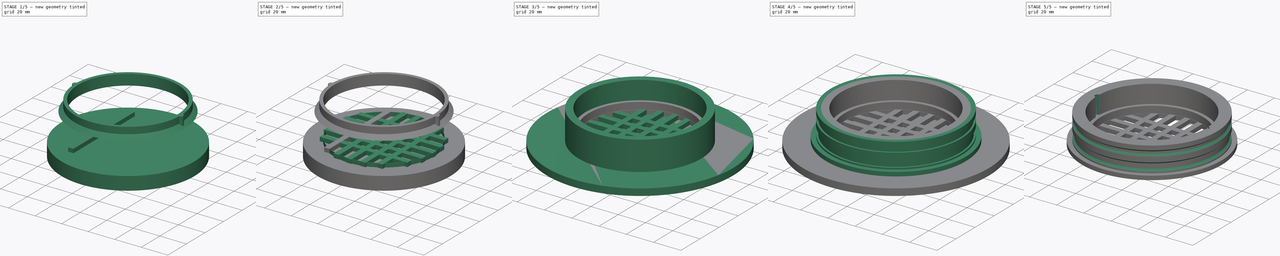
[diagram: build sequence overview — one tinted view per stage of 5, left to right]
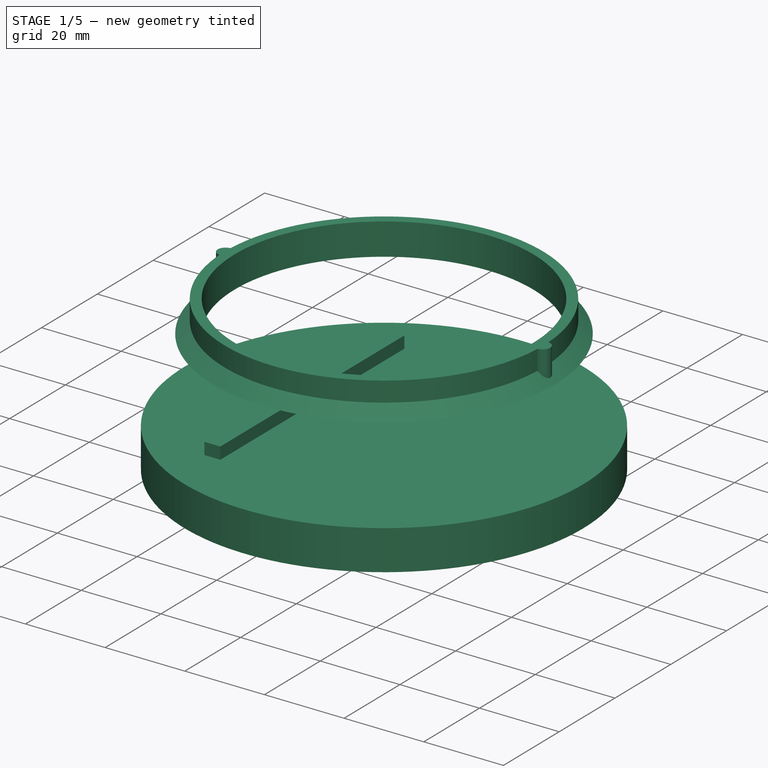
[diagram: stage 1 of 5 — iso view after this stage's code; geometry added in this stage tinted green]
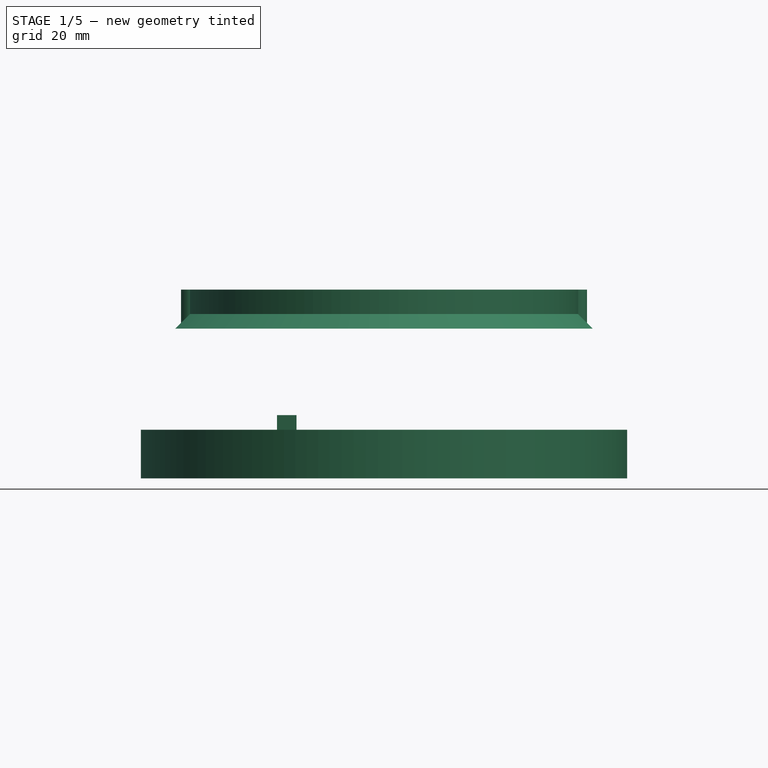
[diagram: stage 1 of 5 — front view after this stage's code; geometry added in this stage tinted green]
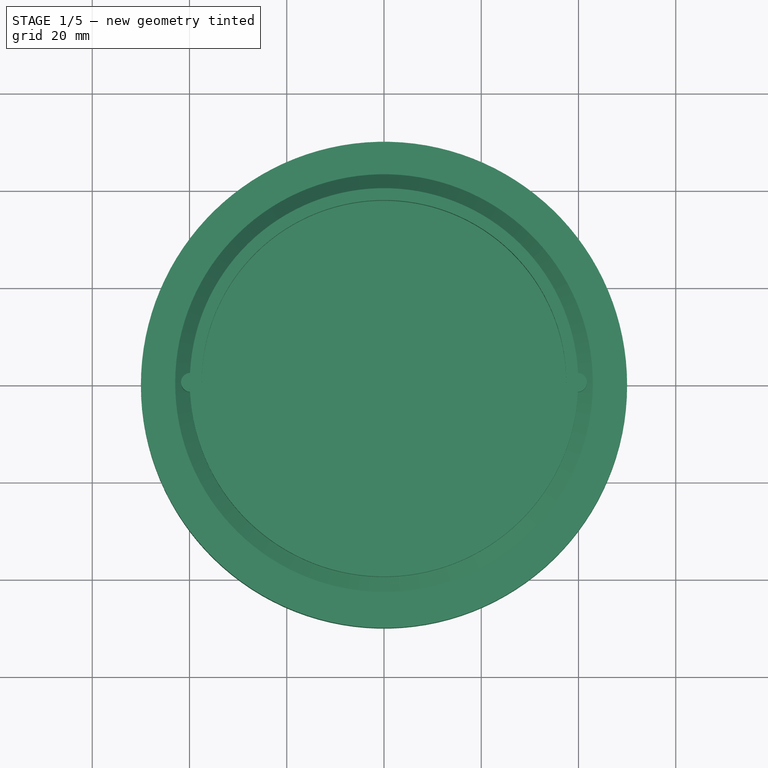
[diagram: stage 1 of 5 — top view after this stage's code; geometry added in this stage tinted green]
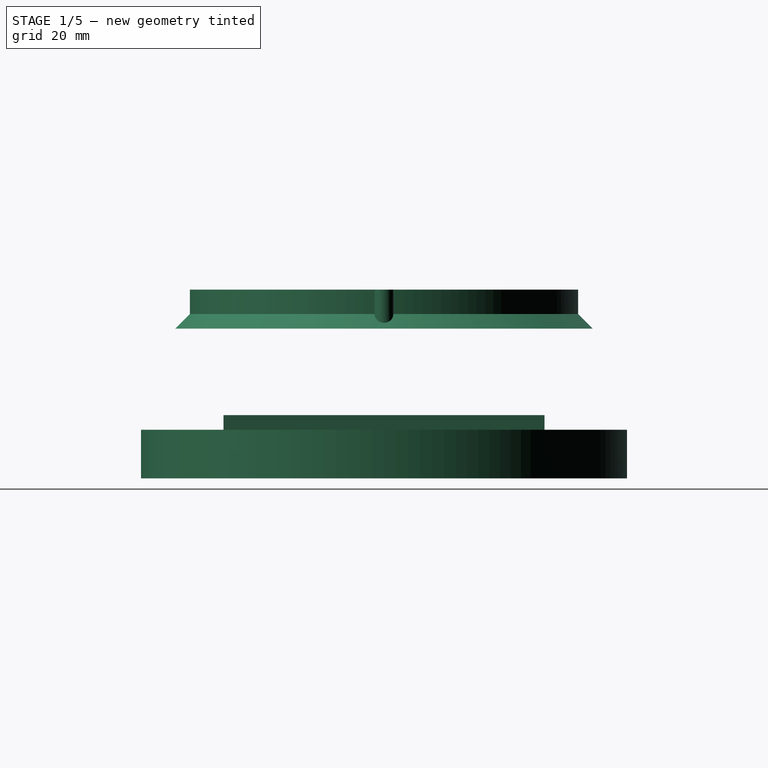
[diagram: stage 1 of 5 — right view after this stage's code; geometry added in this stage tinted green]
FCSTD DOCUMENT  (FreeCAD 0.18R4 (GitTag))
Label: rejilla_banio
License: CreativeCommons Attribution-ShareAlike
LicenseURL: http://creativecommons.org/licenses/by-sa/4.0/
objects: Part::Cylinder×24, Part::Cut×13, Part::Box×10, Part::MultiFuse×8, Part::FeaturePython×6, Part::Cone×2, Part::Chamfer×2, Part::Extrusion×2, App::DocumentObjectGroup×2, Sketcher::SketchObject×1
note: 68 computed .brp shape members not serialized (recipe doc carries the construction recipe); baked Part::Feature solids carry a one-line shape summary decoded from their .brp

FEATURE [Part::Cone] Cone001
  Angle = 360
  AttacherType = Attacher::AttachEngine3D
  Height = 5
  Placement = pos=(0,0,-15.2) rot=(0,1,0;3.14159rad)
  Radius1 = 39.95
  Radius2 = 44.95
FEATURE [Part::Cylinder] Cylinder010
  Angle = 360
  AttacherType = Attacher::AttachEngine3D
  Height = 5
  Radius = 39.95
FEATURE [Part::Cylinder] Cylinder011
  Angle = 360
  AttacherType = Attacher::AttachEngine3D
  Height = 5
  Radius = 37.5
FEATURE [Part::Cut] Cut003
  Base = -> Cylinder010
  Placement = pos=(0,0,-15.2) rot=(0,0,1;0rad)
  Tool = -> Cylinder011
FEATURE [Part::Cylinder] Cylinder012
  Angle = 360
  AttacherType = Attacher::AttachEngine3D
  Height = 32
  Placement = pos=(0,0,-39) rot=(0,0,1;0rad)
  Radius = 37.5
FEATURE [Part::Cut] Cut004
  Base = -> Cone001
  Tool = -> Cylinder012
FEATURE [Part::MultiFuse] Fusion004  label="rejilla_interior_sin_cortar_oblicuo_sin_tapa_5"
  Shapes = -> [Cut003,Cut004]
FEATURE [Part::Box] Box009  label="Cube009"
  AttacherType = Attacher::AttachEngine3D
  Height = 5
  Length = 66
  Placement = pos=(-18,-33,-41) rot=(0,0,1;1.5708rad)
  Width = 4
FEATURE [Part::Cylinder] Cylinder018
  Angle = 360
  AttacherType = Attacher::AttachEngine3D
  Height = 10
  Placement = pos=(0,0,-49) rot=(0,0,1;0rad)
  Radius = 50
FEATURE [Part::Cylinder] Cylinder020  label="ajustar_radio_de_este002"
  Angle = 360
  AttacherType = Attacher::AttachEngine3D
  Height = 5
  Placement = pos=(0,0,-23.2) rot=(0,0,1;0rad)
  Radius = 68.3
FEATURE [Part::Cut] Cut010
  Base = -> Fusion004
  Tool = -> Cylinder020
FEATURE [Part::Cylinder] Cylinder023  label="Cylinder021"
  Angle = 360
  AttacherType = Attacher::AttachEngine3D
  Height = 7.8
  Placement = pos=(-39.8,0,-18) rot=(0,0,1;0rad)
  Radius = 1.95
FEATURE [Part::Cylinder] Cylinder024  label="Cylinder022"
  Angle = 360
  AttacherType = Attacher::AttachEngine3D
  Height = 7.8
  Placement = pos=(39.8,0,-18) rot=(0,0,1;0rad)
  Radius = 1.95
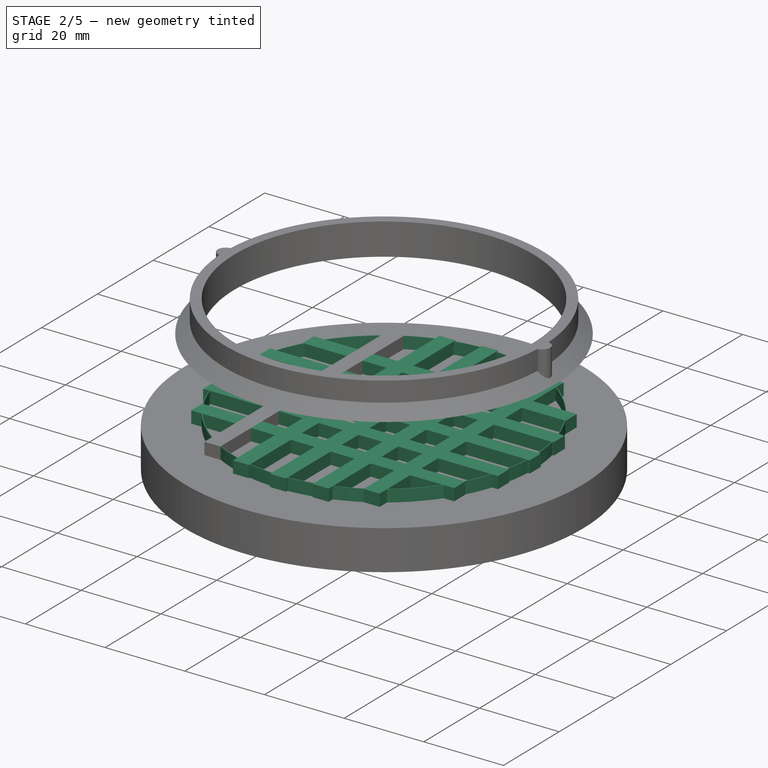
[diagram: stage 2 of 5 — iso view after this stage's code; geometry added in this stage tinted green]
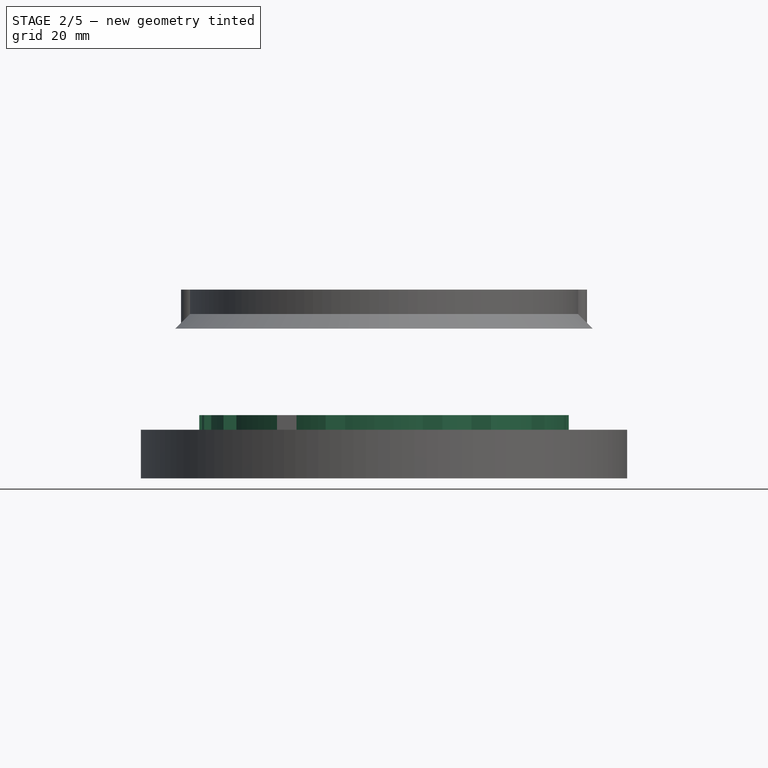
[diagram: stage 2 of 5 — front view after this stage's code; geometry added in this stage tinted green]
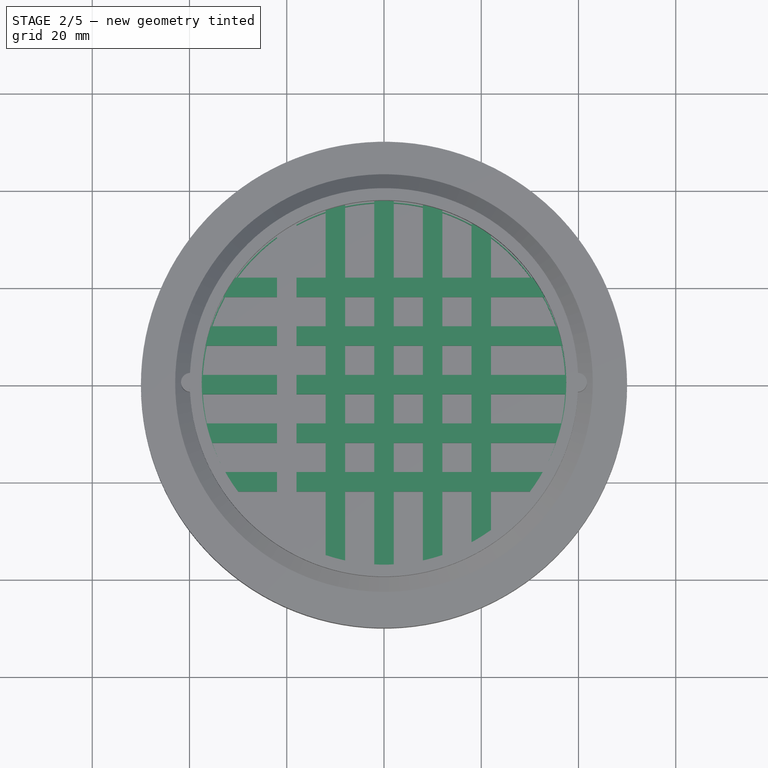
[diagram: stage 2 of 5 — top view after this stage's code; geometry added in this stage tinted green]
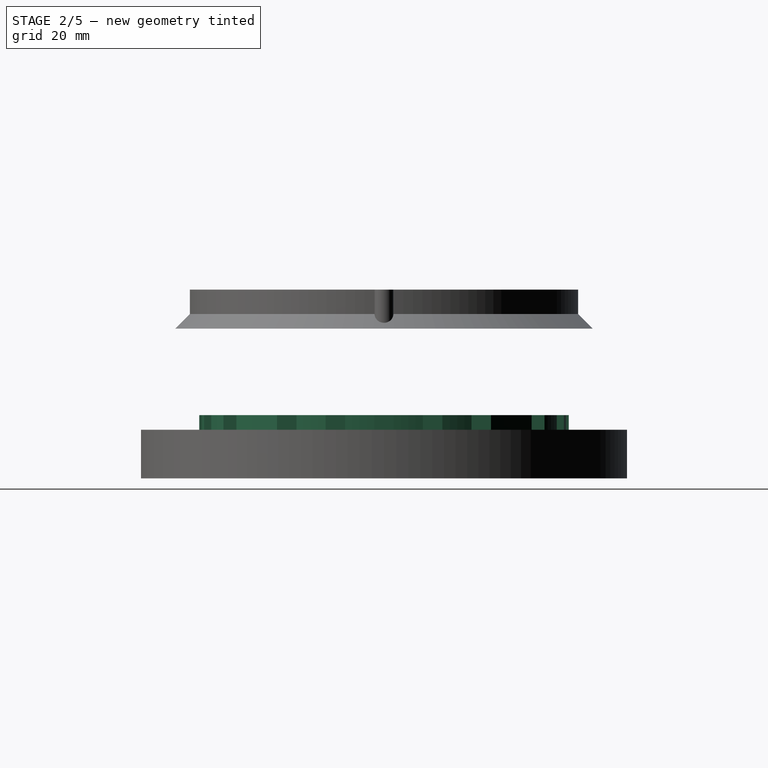
[diagram: stage 2 of 5 — right view after this stage's code; geometry added in this stage tinted green]
FEATURE [Part::Cylinder] Cylinder014
  Angle = 360
  AttacherType = Attacher::AttachEngine3D
  Height = 5
  Placement = pos=(0,0,-41) rot=(0,0,1;0rad)
  Radius = 37.5
FEATURE [Part::Cylinder] Cylinder015
  Angle = 360
  AttacherType = Attacher::AttachEngine3D
  Height = 5
  Placement = pos=(0,0,-41) rot=(0,0,1;0rad)
  Radius = 37.3
FEATURE [Part::Cut] Cut005  label="anillo"
  Base = -> Cylinder014
  Tool = -> Cylinder015
FEATURE [Part::Box] Box  label="Cube"
  AttacherType = Attacher::AttachEngine3D
  Height = 5
  Length = 76
  Placement = pos=(-38,-2,-41) rot=(0,0,1;0rad)
  Width = 4
FEATURE [Part::Box] Box001  label="Cube001"
  AttacherType = Attacher::AttachEngine3D
  Height = 5
  Length = 74
  Placement = pos=(-37,-12,-41) rot=(0,0,1;0rad)
  Width = 4
FEATURE [Part::Box] Box002  label="Cube002"
  AttacherType = Attacher::AttachEngine3D
  Height = 5
  Length = 74
  Placement = pos=(-37,8,-41) rot=(0,0,1;0rad)
  Width = 4
FEATURE [Part::Box] Box003  label="Cube003"
  AttacherType = Attacher::AttachEngine3D
  Height = 5
  Length = 66
  Placement = pos=(-33,-22,-41) rot=(0,0,1;0rad)
  Width = 4
FEATURE [Part::Box] Box004  label="Cube004"
  AttacherType = Attacher::AttachEngine3D
  Height = 5
  Length = 66
  Placement = pos=(-33,18,-41) rot=(0,0,1;0rad)
  Width = 4
FEATURE [Part::Box] Box005  label="Cube005"
  AttacherType = Attacher::AttachEngine3D
  Height = 5
  Length = 76
  Placement = pos=(2,-38,-41) rot=(0,0,1;1.5708rad)
  Width = 4
FEATURE [Part::Box] Box006  label="Cube006"
  AttacherType = Attacher::AttachEngine3D
  Height = 5
  Length = 74
  Placement = pos=(-8,-37,-41) rot=(0,0,1;1.5708rad)
  Width = 4
FEATURE [Part::Box] Box007  label="Cube007"
  AttacherType = Attacher::AttachEngine3D
  Height = 5
  Length = 74
  Placement = pos=(12,-37,-41) rot=(0,0,1;1.5708rad)
  Width = 4
FEATURE [Part::Box] Box008  label="Cube008"
  AttacherType = Attacher::AttachEngine3D
  Height = 5
  Length = 66
  Placement = pos=(22,-33,-41) rot=(0,0,1;1.5708rad)
  Width = 4
FEATURE [Part::MultiFuse] Fusion005
  Shapes = -> [Cut005,Box009,Box008,Box006,Box002,Box001,Box003,Box,Box004,Box005,Box007]
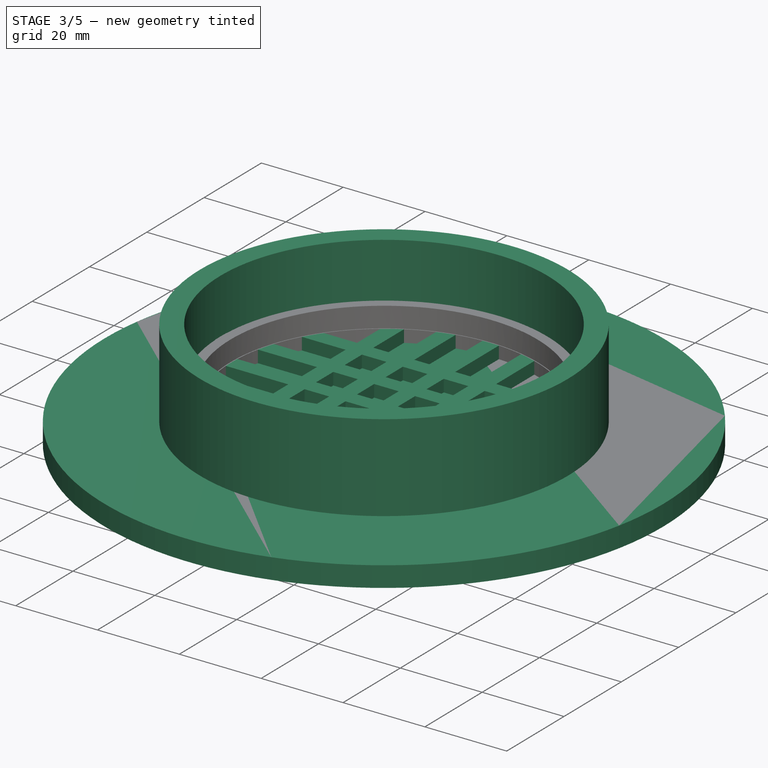
[diagram: stage 3 of 5 — iso view after this stage's code; geometry added in this stage tinted green]
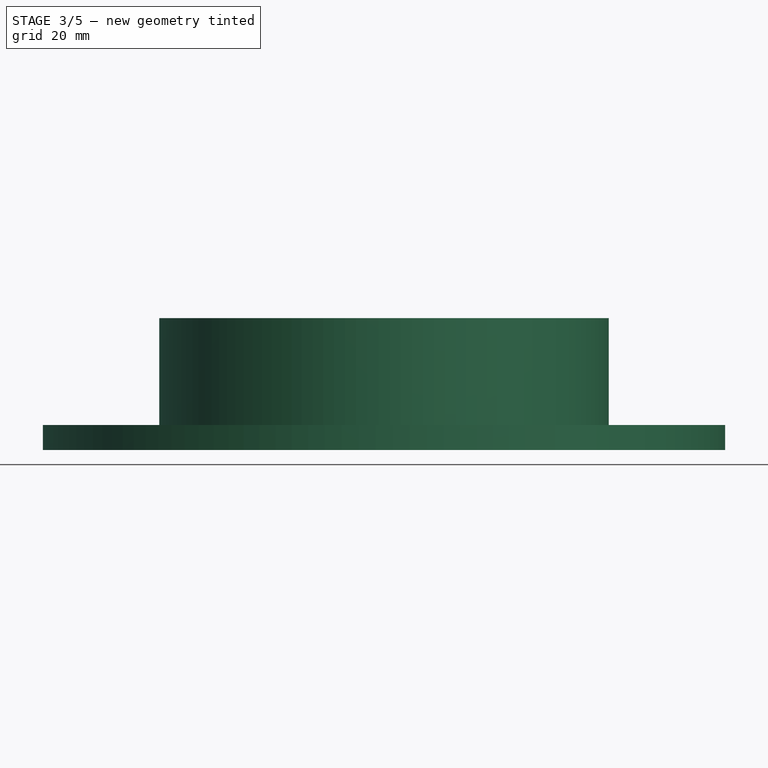
[diagram: stage 3 of 5 — front view after this stage's code; geometry added in this stage tinted green]
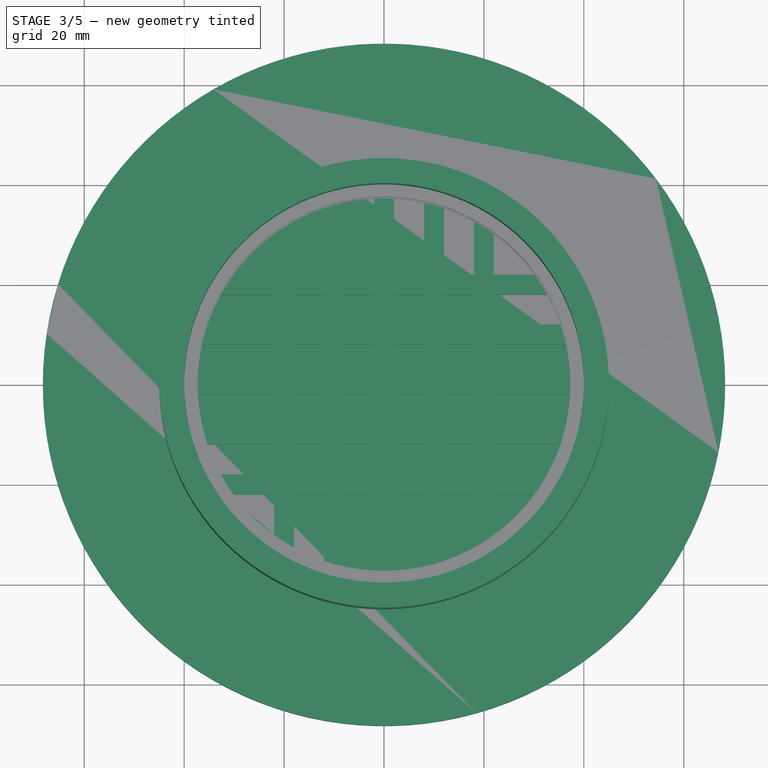
[diagram: stage 3 of 5 — top view after this stage's code; geometry added in this stage tinted green]
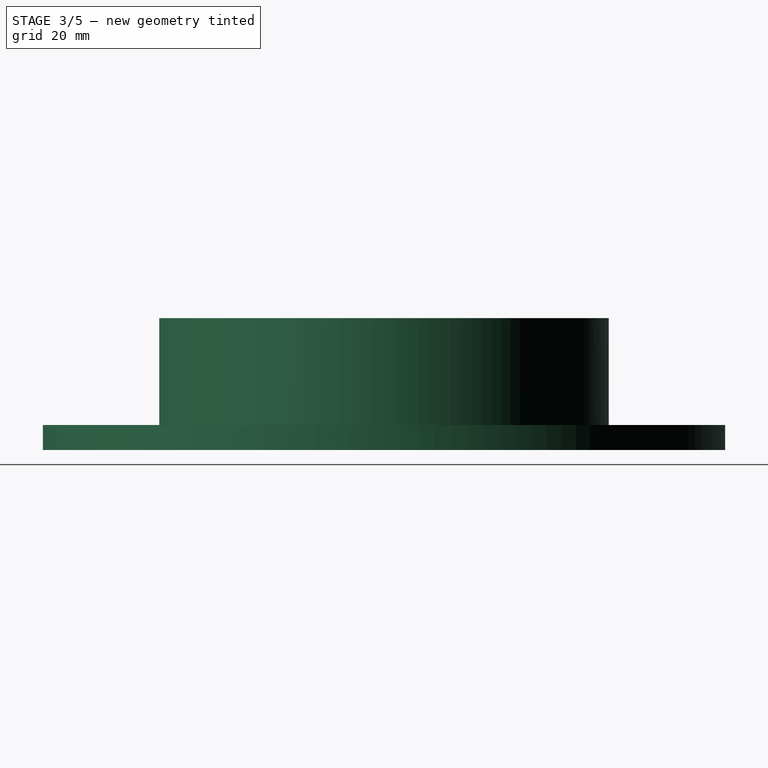
[diagram: stage 3 of 5 — right view after this stage's code; geometry added in this stage tinted green]
FEATURE [Part::Cone] Cone
  Angle = 360
  AttacherType = Attacher::AttachEngine3D
  Height = 5
  Placement = pos=(0,0,-15.2) rot=(0,1,0;3.14159rad)
  Radius1 = 40
  Radius2 = 45
FEATURE [Part::Cylinder] Cylinder008
  Angle = 360
  AttacherType = Attacher::AttachEngine3D
  Height = 23.4
  Placement = pos=(0,0,-20.2) rot=(0,0,1;0rad)
  Radius = 45
FEATURE [Part::Cylinder] Cylinder009
  Angle = 360
  AttacherType = Attacher::AttachEngine3D
  Height = 27.4
  Placement = pos=(0,0,-17) rot=(0,0,1;0rad)
  Radius = 40
FEATURE [Part::MultiFuse] Fusion002
  Shapes = -> [Cylinder009,Cone]
FEATURE [Part::Cut] Cut002
  Base = -> Cylinder008
  Tool = -> Fusion002
FEATURE [Part::Cylinder] Cylinder016
  Angle = 360
  AttacherType = Attacher::AttachEngine3D
  Height = 5
  Placement = pos=(0,0,-41) rot=(0,0,1;0rad)
  Radius = 37.5
FEATURE [Part::Cylinder] Cylinder017
  Angle = 360
  AttacherType = Attacher::AttachEngine3D
  Height = 5
  Placement = pos=(0,0,-41) rot=(0,0,1;0rad)
  Radius = 45
FEATURE [Part::Cut] Cut006
  Base = -> Cylinder017
  Tool = -> Cylinder016
FEATURE [Part::Cut] Cut007
  Base = -> Fusion005
  Tool = -> Cut006
FEATURE [Part::Cut] Cut008
  Base = -> Cut007
  Placement = pos=(0,0,20.8) rot=(0,0,1;0rad)
  Tool = -> Cylinder018
FEATURE [Part::Cylinder] Cylinder019  label="ajustar_radio_de_este001"
  Angle = 360
  AttacherType = Attacher::AttachEngine3D
  Height = 5
  Placement = pos=(0,0,-23.2) rot=(0,0,1;0rad)
  Radius = 68.3
FEATURE [Part::MultiFuse] Fusion006  label="rejilla__interior_sin_cortar_oblicuo_sin_muescas"
  Shapes = -> [Cut008,Cut010]
FEATURE [Part::MultiFuse] Fusion007  label="rejilla__interior_sin_cortar_oblicuo"
  Shapes = -> [Fusion006,Cylinder023,Cylinder024]
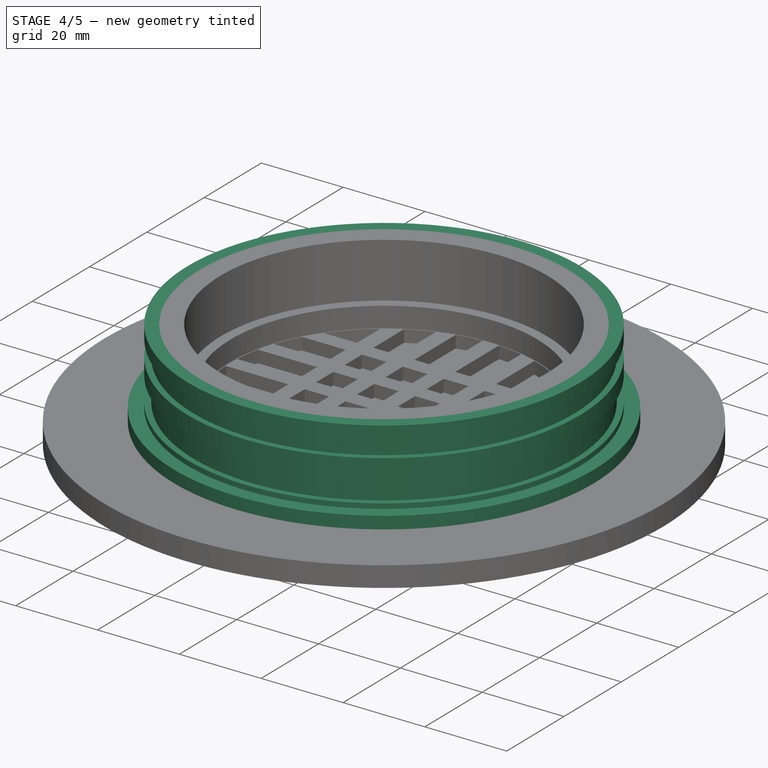
[diagram: stage 4 of 5 — iso view after this stage's code; geometry added in this stage tinted green]
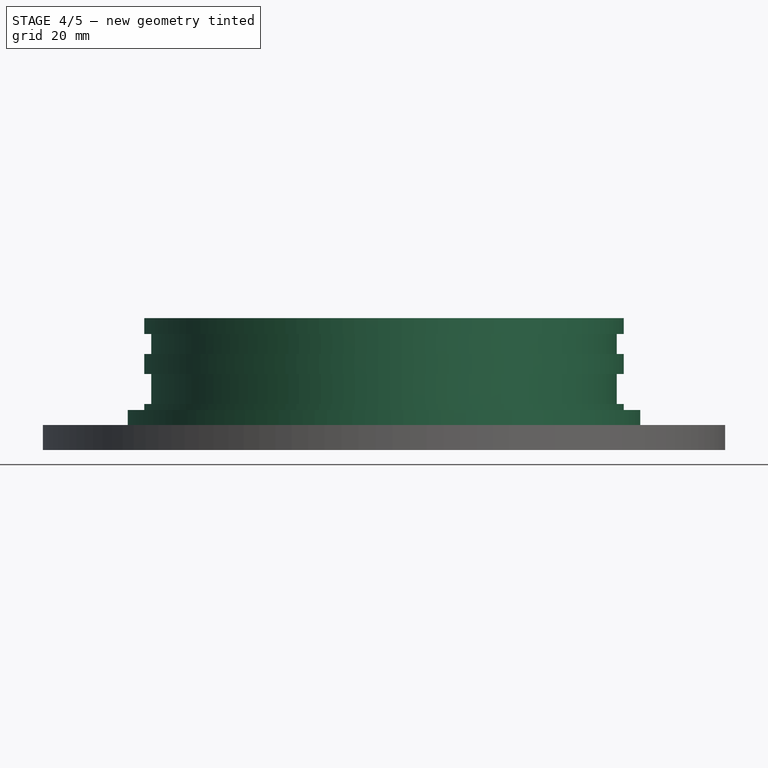
[diagram: stage 4 of 5 — front view after this stage's code; geometry added in this stage tinted green]
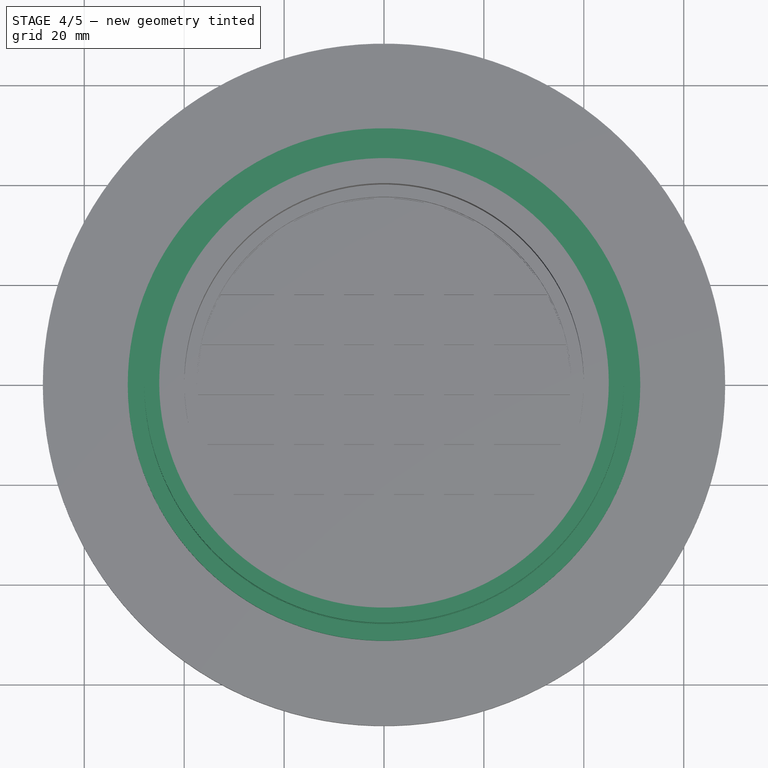
[diagram: stage 4 of 5 — top view after this stage's code; geometry added in this stage tinted green]
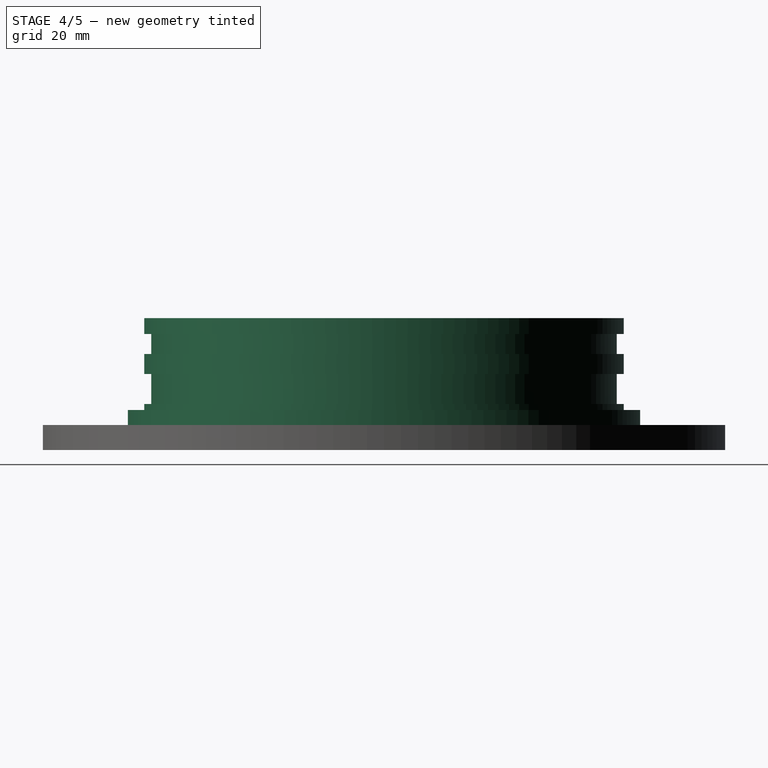
[diagram: stage 4 of 5 — right view after this stage's code; geometry added in this stage tinted green]
FEATURE [Part::Cylinder] Cylinder
  Angle = 360
  AttacherType = Attacher::AttachEngine3D
  Height = 3.2
  Radius = 48
FEATURE [Part::Cylinder] Cylinder001
  Angle = 360
  AttacherType = Attacher::AttachEngine3D
  Height = 4
  Placement = pos=(0,0,-4) rot=(0,0,1;0rad)
  Radius = 46.6
FEATURE [Part::Cylinder] Cylinder002
  Angle = 360
  AttacherType = Attacher::AttachEngine3D
  Height = 4
  Placement = pos=(0,0,-8) rot=(0,0,1;0rad)
  Radius = 48
FEATURE [Part::Cylinder] Cylinder003
  Angle = 360
  AttacherType = Attacher::AttachEngine3D
  Height = 6
  Placement = pos=(0,0,-14) rot=(0,0,1;0rad)
  Radius = 46.6
FEATURE [Part::Cylinder] Cylinder004
  Angle = 360
  AttacherType = Attacher::AttachEngine3D
  Height = 1.2
  Placement = pos=(0,0,-15.2) rot=(0,0,1;0rad)
  Radius = 48
FEATURE [Part::MultiFuse] Fusion
  Shapes = -> [Cylinder004,Cylinder,Cylinder003,Cylinder001,Cylinder002]
FEATURE [Part::Cylinder] Cylinder005
  Angle = 360
  AttacherType = Attacher::AttachEngine3D
  Height = 25
  Placement = pos=(0,0,-18) rot=(0,0,1;0rad)
  Radius = 45
FEATURE [Part::Cut] Cut
  Base = -> Fusion
  Tool = -> Cylinder005
FEATURE [Part::Cylinder] Cylinder006  label="ajustar_radio_de_este"
  Angle = 360
  AttacherType = Attacher::AttachEngine3D
  Height = 5
  Placement = pos=(0,0,-20.2) rot=(0,0,1;0rad)
  Radius = 51.3
FEATURE [Part::Cylinder] Cylinder007
  Angle = 360
  AttacherType = Attacher::AttachEngine3D
  Height = 25
  Placement = pos=(0,0,-23) rot=(0,0,1;0rad)
  Radius = 45
FEATURE [Part::Cut] Cut001
  Base = -> Cylinder006
  Tool = -> Cylinder007
FEATURE [Part::MultiFuse] Fusion001
  Shapes = -> [Cut001,Cut]
FEATURE [Part::MultiFuse] Fusion003  label="rejilla_sin_cortar_oblicuo_sin_chaflan"
  Shapes = -> [Fusion001,Cut002]
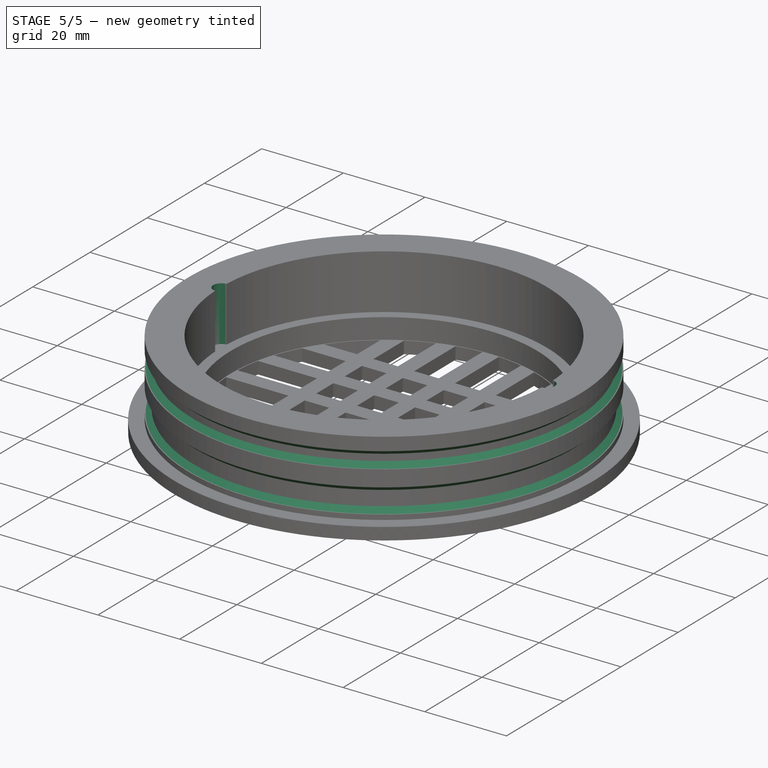
[diagram: stage 5 of 5 — iso view after this stage's code; geometry added in this stage tinted green]
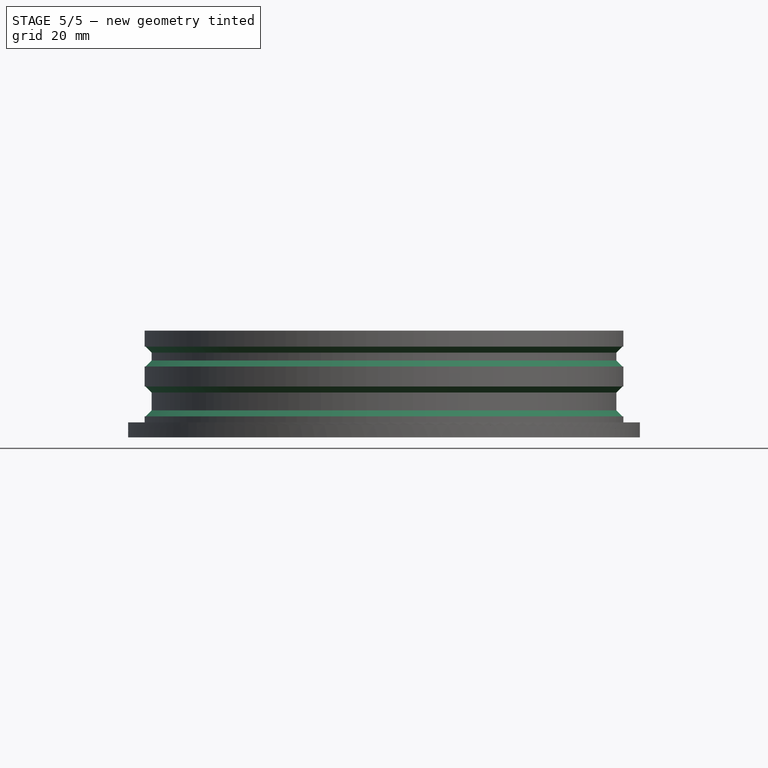
[diagram: stage 5 of 5 — front view after this stage's code; geometry added in this stage tinted green]
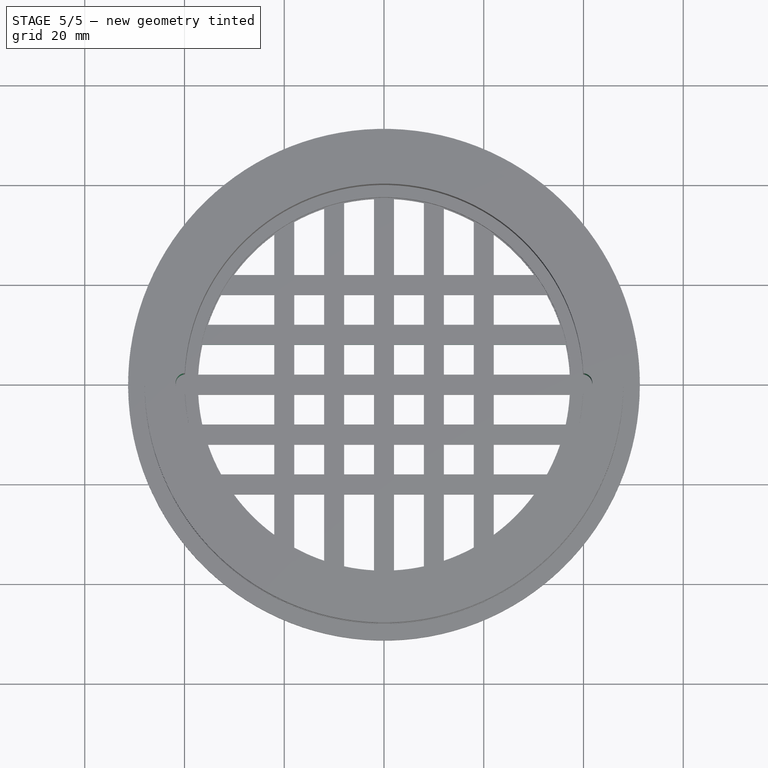
[diagram: stage 5 of 5 — top view after this stage's code; geometry added in this stage tinted green]
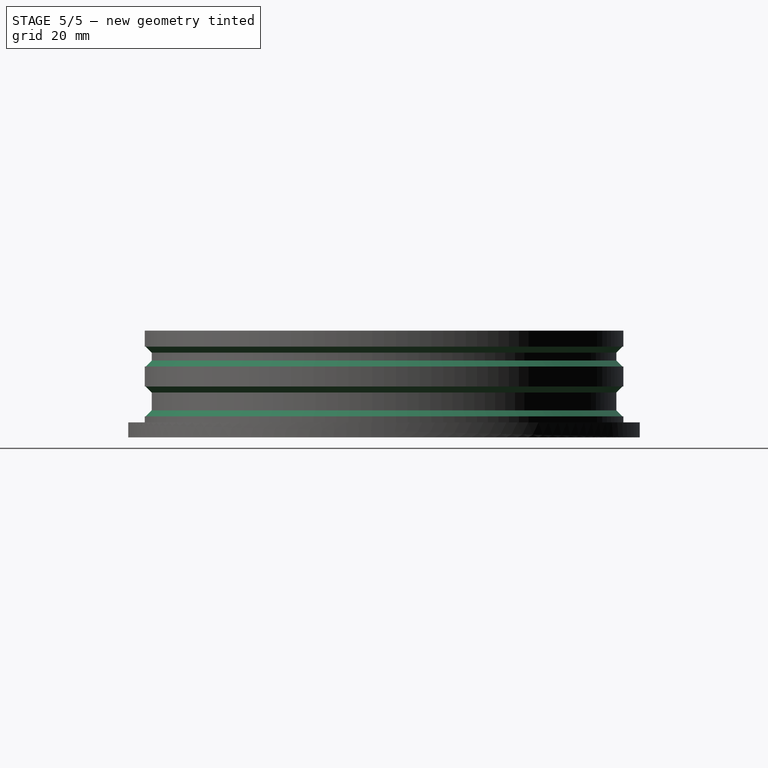
[diagram: stage 5 of 5 — right view after this stage's code; geometry added in this stage tinted green]
FEATURE [Part::Chamfer] Chamfer
  Base = -> Fusion003
  Edges = 2 edges r=1.2: [Edge12,Edge24]
FEATURE [Part::Chamfer] Chamfer001  label="rejilla__exteriorsin_cortar_oblicuo_alta"
  Base = -> Chamfer
  Edges = 2 edges r=1.2: [Edge8,Edge26]
FEATURE [Part::Cut] Cut009  label="rejilla__exterior_sin_cortar_oblicuo_sin_muescas"
  Base = -> Chamfer001
  Tool = -> Cylinder019
FEATURE [Sketcher::SketchObject] Sketch
  MapMode = 5
  Placement = pos=(0,0,-18.2) rot=(1,0,0;3.14159rad)
  Support = -> [Cut009]
  sketch-geometry (1):
    g0: LineSegment StartX=-62 StartY=0 StartZ=0 EndX=62 EndY=0 EndZ=0
  constraints (3):
    c: PointOnObject(g0,g-1)
    c: Symmetric(g0,g0,g-2)
    c: DistanceX(g0,g-1) = 62
FEATURE [Part::Extrusion] Extrude  label="plano_corte_1"
  Base = -> Sketch
  Dir = (0,1,0)
  DirMode = 0
  FaceMakerClass = Part::FaceMakerBullseye
  LengthFwd = 124
  LengthRev = 0
  Placement = pos=(0,0,1.26) rot=(1,0,0;6.25882rad)
  Solid = false
  Symmetric = true
FEATURE [Part::Extrusion] Extrude001  label="plano_corte_002"
  Base = -> Sketch
  Dir = (0,1,0)
  DirMode = 0
  FaceMakerClass = Part::FaceMakerBullseye
  LengthFwd = 124
  LengthRev = 0
  Placement = pos=(0,0,1.052) rot=(-1,0,0;0.024435rad)
  Solid = false
  Symmetric = true
FEATURE [Part::Cylinder] Cylinder021  label="Cylinder019"
  Angle = 360
  AttacherType = Attacher::AttachEngine3D
  Height = 25
  Placement = pos=(-39.8,0,-20) rot=(0,0,1;0rad)
  Radius = 2
FEATURE [Part::Cylinder] Cylinder022  label="Cylinder020"
  Angle = 360
  AttacherType = Attacher::AttachEngine3D
  Height = 25
  Placement = pos=(39.8,0,-20) rot=(0,0,1;0rad)
  Radius = 2
FEATURE [Part::Cut] Cut011
  Base = -> Cut009
  Tool = -> Cylinder021
FEATURE [Part::Cut] Cut012  label="rejilla__exterior_sin_cortar_oblicuo"
  Base = -> Cut011
  Tool = -> Cylinder022
FEATURE [Part::FeaturePython] Slice  # WARN: FeaturePython — macro-defined, semantics opaque (R4)
  Base = -> Cut012
  Mode = 1
  Tolerance = 0
  Tools = -> [Extrude]
FEATURE [Part::FeaturePython] Slice_child0  label="rejilla__exterior_chaflanada"  # WARN: FeaturePython — macro-defined, semantics opaque (R4)
  Base = -> Slice
  FilterType = 1
  Invert = false
  OverrideMaxVal = 0
  WindowFrom = 80
  WindowTo = 100
  items = 0
FEATURE [Part::FeaturePython] Slice_child1  label="Slice.1"  # WARN: FeaturePython — macro-defined, semantics opaque (R4)
  Base = -> Slice
  FilterType = 1
  Invert = false
  OverrideMaxVal = 0
  WindowFrom = 80
  WindowTo = 100
  items = 1
FEATURE [App::DocumentObjectGroup] GrExplode_Slice  label="Exploded Slice"
  Group = -> [Slice_child0,Slice_child1]
FEATURE [Part::FeaturePython] Slice001  # WARN: FeaturePython — macro-defined, semantics opaque (R4)
  Base = -> Fusion007
  Mode = 1
  Tolerance = 0
  Tools = -> [Extrude001]
FEATURE [Part::FeaturePython] Slice001_child0  label="rejilla__interior_achaflanada"  # WARN: FeaturePython — macro-defined, semantics opaque (R4)
  Base = -> Slice001
  FilterType = 1
  Invert = false
  OverrideMaxVal = 0
  WindowFrom = 80
  WindowTo = 100
  items = 0
FEATURE [Part::FeaturePython] Slice001_child1  label="Slice001.1"  # WARN: FeaturePython — macro-defined, semantics opaque (R4)
  Base = -> Slice001
  FilterType = 1
  Invert = false
  OverrideMaxVal = 0
  WindowFrom = 80
  WindowTo = 100
  items = 1
FEATURE [App::DocumentObjectGroup] GrExplode_Slice001  label="Exploded Slice001"
  Group = -> [Slice001_child0,Slice001_child1]
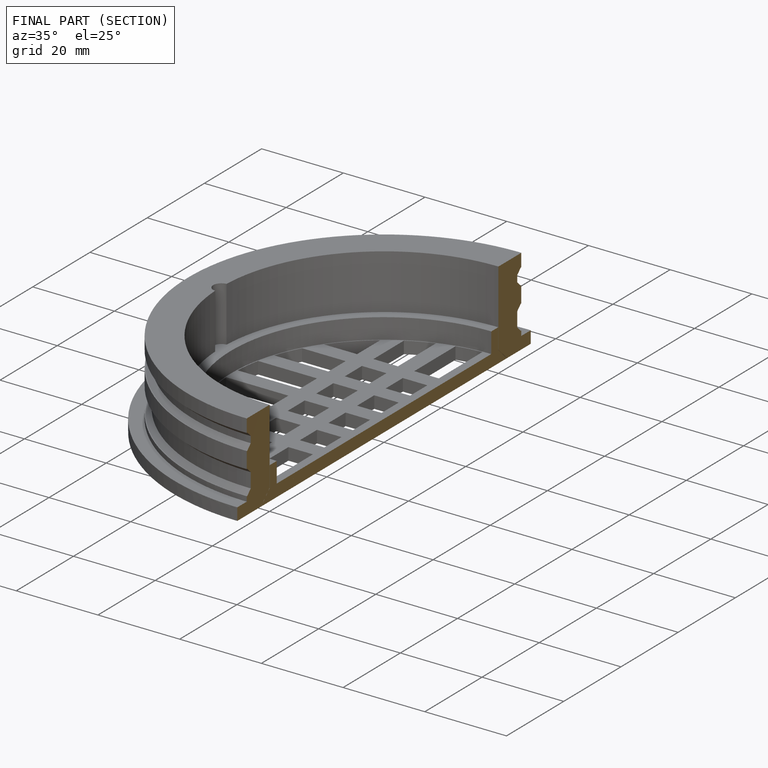
[diagram: finished part — half-section view (interior)]
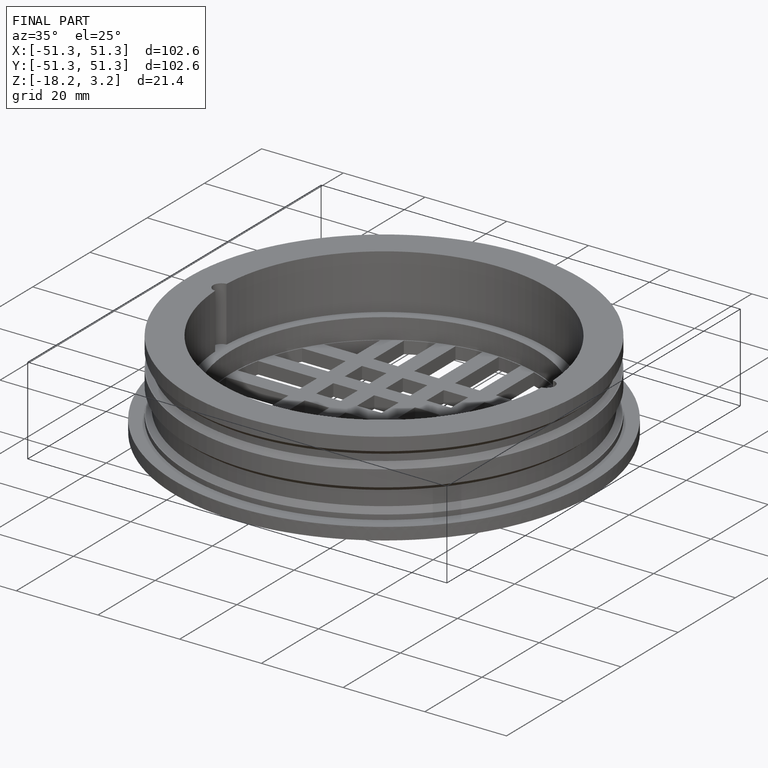
[diagram: finished part — iso view with bounding-box wireframe]
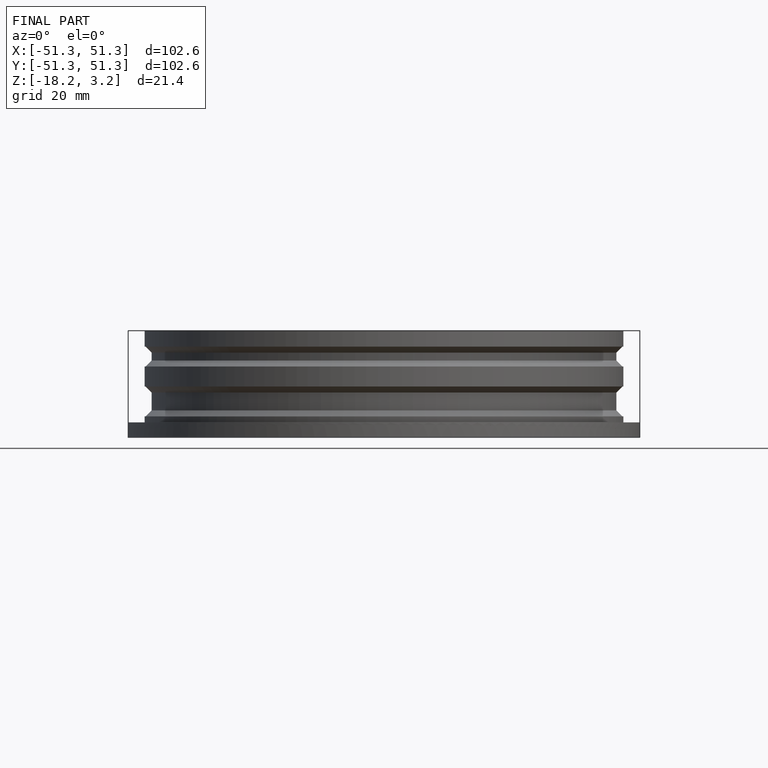
[diagram: finished part — front view with bounding-box wireframe]
